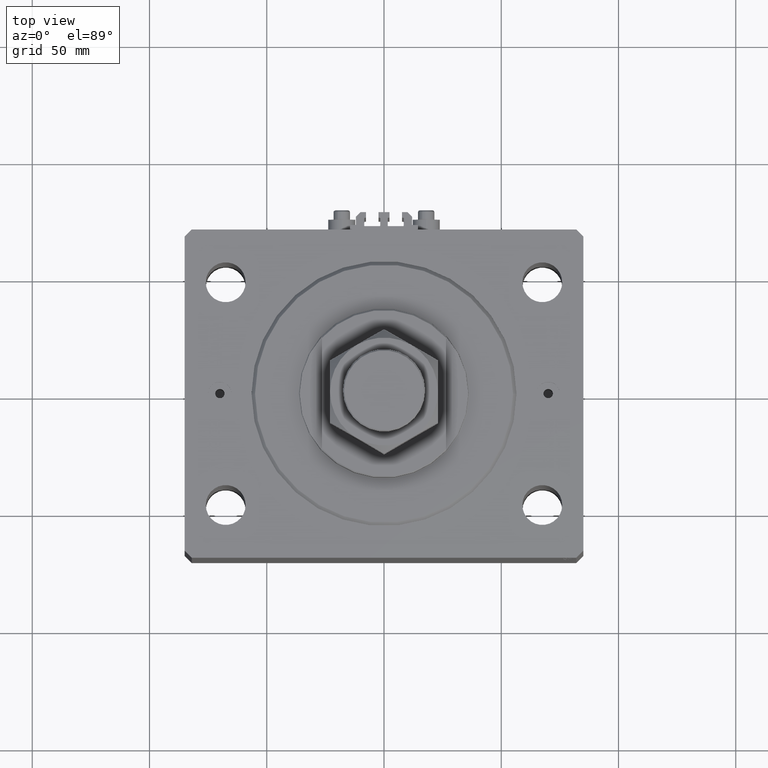
[diagram: clean part render]
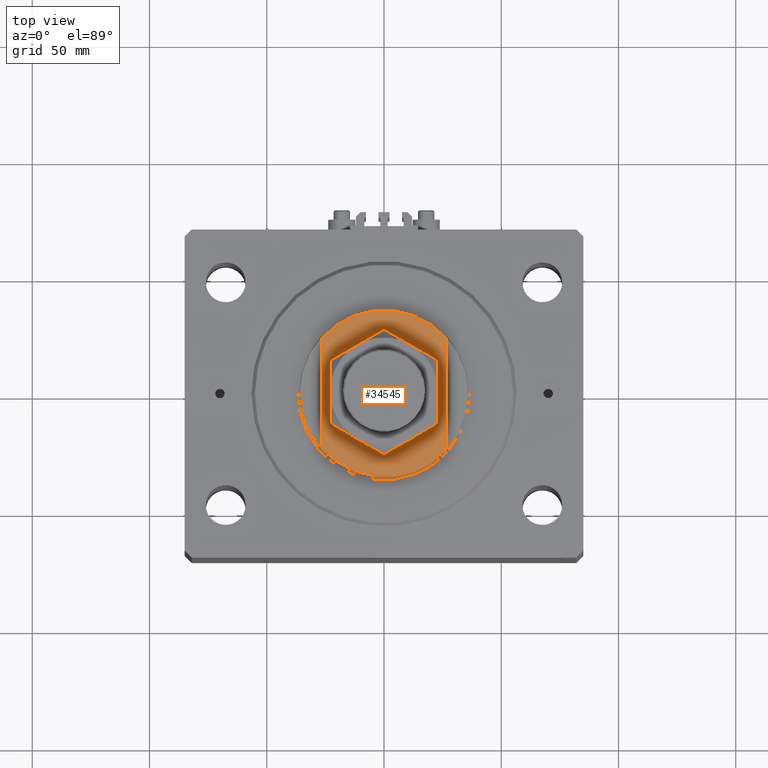
[diagram: same view with one face highlighted and labeled with its STEP entity id]
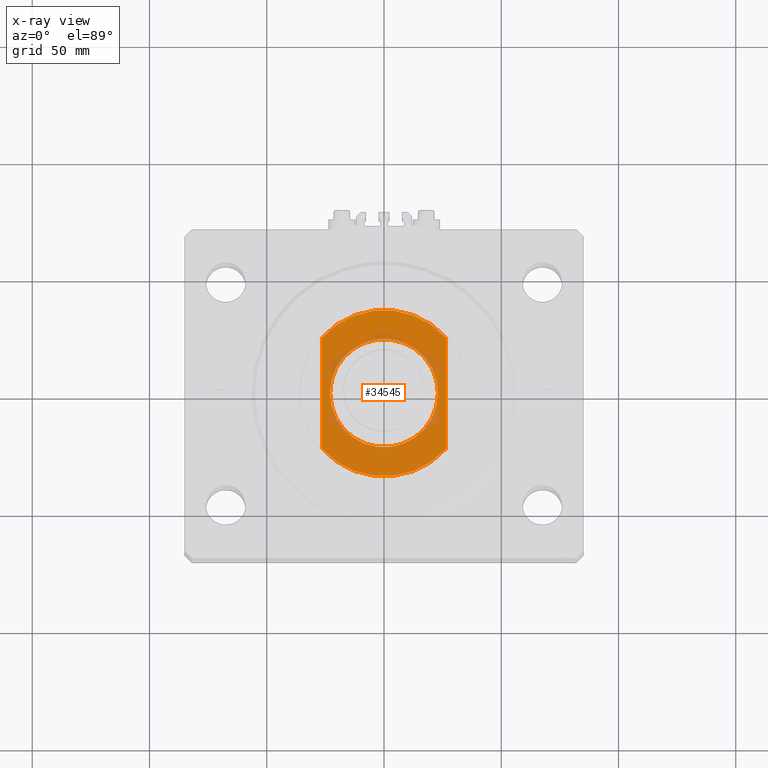
[diagram: x-ray of the same camera — body ghosted, the highlighted face saturated]
A machine part, top view. The second image highlights one B-rep face of the part: STEP entity #34545.
The next image is the same camera in x-ray: the body ghosted, the highlighted face saturated — about 12% of this face is hidden behind the body in this view.
In plain terms, the highlighted planar face has unit normal (0, 0, 1).
Its self-contained STEP definition (entity closure, byte-faithful):
#37 = CIRCLE ( 'NONE', #3187, 35.49999999999999289 ) ;
#1124 = CARTESIAN_POINT ( 'NONE',  ( -26.50000000000000000, 23.62202362203541739, -8.000000000000000000 ) ) ;
#1385 = ORIENTED_EDGE ( 'NONE', *, *, #14305, .T. ) ;
#1447 = VECTOR ( 'NONE', #43744, 1000.000000000000000 ) ;
#1555 = EDGE_CURVE ( 'NONE', #15260, #26770, #16742, .T. ) ;
#2185 = ORIENTED_EDGE ( 'NONE', *, *, #17618, .T. ) ;
#2927 = CARTESIAN_POINT ( 'NONE',  ( 0.000000000000000000, 0.000000000000000000, -8.000000000000000000 ) ) ;
#2991 = AXIS2_PLACEMENT_3D ( 'NONE', #37383, #26466, #37626 ) ;
#3187 = AXIS2_PLACEMENT_3D ( 'NONE', #13135, #36167, #40134 ) ;
#5995 = PLANE ( 'NONE',  #17303 ) ;
#7442 = ORIENTED_EDGE ( 'NONE', *, *, #38703, .T. ) ;
#8304 = ORIENTED_EDGE ( 'NONE', *, *, #35563, .F. ) ;
#9362 = ORIENTED_EDGE ( 'NONE', *, *, #1555, .T. ) ;
#9478 = CARTESIAN_POINT ( 'NONE',  ( -26.50000000000000000, -23.62202362203541739, -8.000000000000000000 ) ) ;
#9689 = FACE_OUTER_BOUND ( 'NONE', #15815, .T. ) ;
#11881 = LINE ( 'NONE', #34927, #18911 ) ;
#12041 = VERTEX_POINT ( 'NONE', #9478 ) ;
#13135 = CARTESIAN_POINT ( 'NONE',  ( 0.000000000000000000, 0.000000000000000000, -8.000000000000000000 ) ) ;
#14305 = EDGE_CURVE ( 'NONE', #14536, #16395, #21210, .T. ) ;
#14536 = VERTEX_POINT ( 'NONE', #31112 ) ;
#14575 = VERTEX_POINT ( 'NONE', #1124 ) ;
#15260 = VERTEX_POINT ( 'NONE', #21968 ) ;
#15815 = EDGE_LOOP ( 'NONE', ( #7442, #9362, #2185, #8304 ) ) ;
#16073 = CIRCLE ( 'NONE', #44552, 35.49999999999999289 ) ;
#16395 = VERTEX_POINT ( 'NONE', #29311 ) ;
#16742 = LINE ( 'NONE', #46714, #1447 ) ;
#17303 = AXIS2_PLACEMENT_3D ( 'NONE', #40634, #25036, #21073 ) ;
#17618 = EDGE_CURVE ( 'NONE', #26770, #12041, #16073, .T. ) ;
#18911 = VECTOR ( 'NONE', #22543, 1000.000000000000000 ) ;
#21073 = DIRECTION ( 'NONE',  ( -1.000000000000000000, 0.000000000000000000, -0.000000000000000000 ) ) ;
#21210 = CIRCLE ( 'NONE', #2991, 23.00000000000000355 ) ;
#21968 = CARTESIAN_POINT ( 'NONE',  ( 26.50000000000000000, 23.62202362203541739, -8.000000000000000000 ) ) ;
#22543 = DIRECTION ( 'NONE',  ( -0.000000000000000000, -1.000000000000000000, -0.000000000000000000 ) ) ;
#24271 = CARTESIAN_POINT ( 'NONE',  ( 0.000000000000000000, 0.000000000000000000, -8.000000000000000000 ) ) ;
#25036 = DIRECTION ( 'NONE',  ( 0.000000000000000000, 0.000000000000000000, -1.000000000000000000 ) ) ;
#26466 = DIRECTION ( 'NONE',  ( -0.000000000000000000, -0.000000000000000000, 1.000000000000000000 ) ) ;
#26770 = VERTEX_POINT ( 'NONE', #47551 ) ;
#27715 = EDGE_LOOP ( 'NONE', ( #31459, #1385 ) ) ;
#28520 = FACE_BOUND ( 'NONE', #27715, .T. ) ;
#29311 = CARTESIAN_POINT ( 'NONE',  ( -23.00000000000000355, 0.000000000000000000, -8.000000000000000000 ) ) ;
#29922 = DIRECTION ( 'NONE',  ( -1.000000000000000000, 0.000000000000000000, 0.000000000000000000 ) ) ;
#31112 = CARTESIAN_POINT ( 'NONE',  ( 23.00000000000000355, 2.816687638038912746E-15, -8.000000000000000000 ) ) ;
#31334 = AXIS2_PLACEMENT_3D ( 'NONE', #24271, #31466, #46567 ) ;
#31459 = ORIENTED_EDGE ( 'NONE', *, *, #47666, .T. ) ;
#31466 = DIRECTION ( 'NONE',  ( -0.000000000000000000, -0.000000000000000000, 1.000000000000000000 ) ) ;
#34545 = ADVANCED_FACE ( 'NONE', ( #28520, #9689 ), #5995, .T. ) ;
#34927 = CARTESIAN_POINT ( 'NONE',  ( -26.50000000000000000, -36.36963018783666257, -8.000000000000000000 ) ) ;
#35563 = EDGE_CURVE ( 'NONE', #14575, #12041, #11881, .T. ) ;
#36167 = DIRECTION ( 'NONE',  ( 0.000000000000000000, 0.000000000000000000, -1.000000000000000000 ) ) ;
#37383 = CARTESIAN_POINT ( 'NONE',  ( 0.000000000000000000, 0.000000000000000000, -8.000000000000000000 ) ) ;
#37626 = DIRECTION ( 'NONE',  ( -1.000000000000000000, 0.000000000000000000, 0.000000000000000000 ) ) ;
#38437 = CIRCLE ( 'NONE', #31334, 23.00000000000000355 ) ;
#38703 = EDGE_CURVE ( 'NONE', #14575, #15260, #37, .T. ) ;
#40134 = DIRECTION ( 'NONE',  ( -1.000000000000000000, 0.000000000000000000, 0.000000000000000000 ) ) ;
#40634 = CARTESIAN_POINT ( 'NONE',  ( 0.000000000000000000, 0.000000000000000000, -8.000000000000000000 ) ) ;
#41316 = DIRECTION ( 'NONE',  ( 0.000000000000000000, 0.000000000000000000, -1.000000000000000000 ) ) ;
#43744 = DIRECTION ( 'NONE',  ( 0.000000000000000000, -1.000000000000000000, -0.000000000000000000 ) ) ;
#44552 = AXIS2_PLACEMENT_3D ( 'NONE', #2927, #41316, #29922 ) ;
#46567 = DIRECTION ( 'NONE',  ( -1.000000000000000000, 0.000000000000000000, 0.000000000000000000 ) ) ;
#46714 = CARTESIAN_POINT ( 'NONE',  ( 26.50000000000000000, -36.36963018783666257, -8.000000000000000000 ) ) ;
#47551 = CARTESIAN_POINT ( 'NONE',  ( 26.50000000000000000, -23.62202362203541739, -8.000000000000000000 ) ) ;
#47666 = EDGE_CURVE ( 'NONE', #16395, #14536, #38437, .T. ) ;